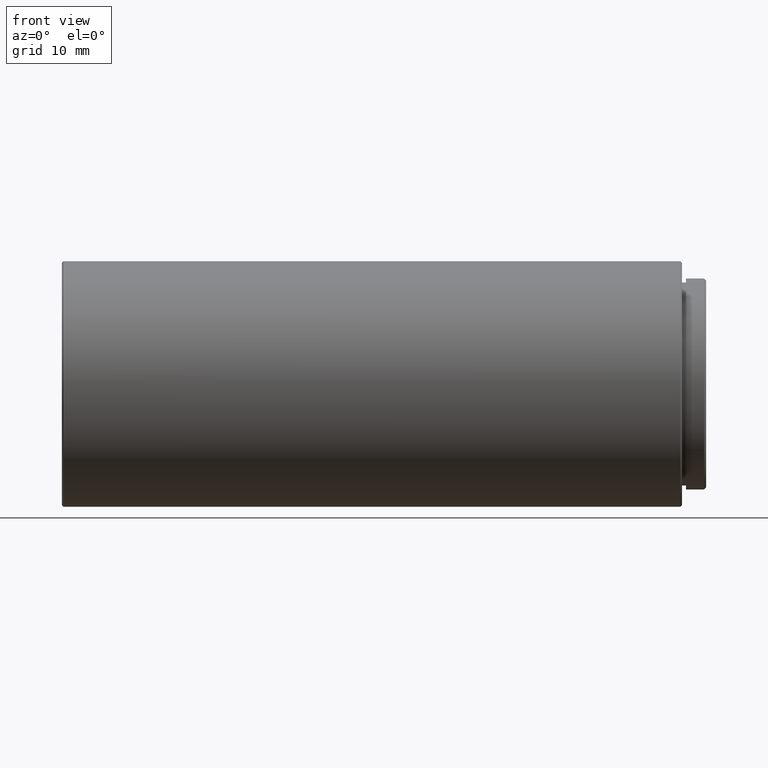
[diagram: clean part render]
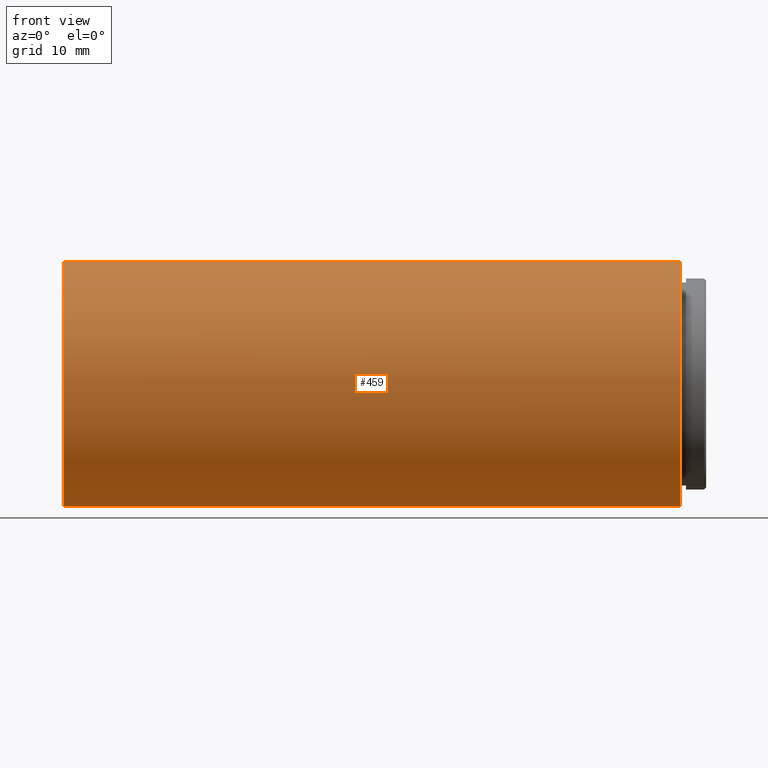
[diagram: same view with one face highlighted and labeled with its STEP entity id]
A machine part, front view. The second image highlights one B-rep face of the part: STEP entity #459.
In plain terms, the highlighted cylindrical surface (partial cylindrical patch) has radius 15.25 mm, axis along (-1, -0, -0).
Its self-contained STEP definition (entity closure, byte-faithful):
#67 = EDGE_CURVE ( 'NONE', #1113, #1412, #396, .T. ) ;
#142 = DIRECTION ( 'NONE',  ( -1.000000000000000000, 0.000000000000000000, 0.000000000000000000 ) ) ;
#186 = LINE ( 'NONE', #1103, #1146 ) ;
#357 = ORIENTED_EDGE ( 'NONE', *, *, #67, .T. ) ;
#371 = CARTESIAN_POINT ( 'NONE',  ( 3.325999999999999623, -20.10857142857141611, -15.25000000000000000 ) ) ;
#372 = CIRCLE ( 'NONE', #1215, 15.25000000000000000 ) ;
#396 = LINE ( 'NONE', #473, #1218 ) ;
#417 = FACE_OUTER_BOUND ( 'NONE', #1411, .T. ) ;
#429 = DIRECTION ( 'NONE',  ( 1.000000000000000000, 0.000000000000000000, 0.000000000000000000 ) ) ;
#459 = ADVANCED_FACE ( 'NONE', ( #417 ), #709, .T. ) ;
#473 = CARTESIAN_POINT ( 'NONE',  ( 3.525999999999982926, -20.10857142857141966, 15.25000000000000000 ) ) ;
#492 = DIRECTION ( 'NONE',  ( -1.000000000000000000, -0.000000000000000000, -0.000000000000000000 ) ) ;
#548 = EDGE_CURVE ( 'NONE', #673, #883, #186, .T. ) ;
#570 = EDGE_CURVE ( 'NONE', #673, #1113, #1503, .T. ) ;
#613 = DIRECTION ( 'NONE',  ( 0.000000000000000000, 0.000000000000000000, 1.000000000000000000 ) ) ;
#673 = VERTEX_POINT ( 'NONE', #371 ) ;
#685 = CARTESIAN_POINT ( 'NONE',  ( -73.27400000000002933, -20.10857142857141966, 0.000000000000000000 ) ) ;
#709 = CYLINDRICAL_SURFACE ( 'NONE', #1270, 15.25000000000000000 ) ;
#719 = ORIENTED_EDGE ( 'NONE', *, *, #570, .T. ) ;
#775 = CARTESIAN_POINT ( 'NONE',  ( 3.325999999999999623, -20.10857142857141966, 0.000000000000000000 ) ) ;
#813 = ORIENTED_EDGE ( 'NONE', *, *, #548, .F. ) ;
#833 = CARTESIAN_POINT ( 'NONE',  ( -73.27400000000002933, -20.10857142857141966, 15.25000000000000000 ) ) ;
#844 = EDGE_CURVE ( 'NONE', #1412, #883, #372, .T. ) ;
#883 = VERTEX_POINT ( 'NONE', #1420 ) ;
#960 = ORIENTED_EDGE ( 'NONE', *, *, #844, .T. ) ;
#1021 = DIRECTION ( 'NONE',  ( 0.000000000000000000, 0.000000000000000000, -1.000000000000000000 ) ) ;
#1103 = CARTESIAN_POINT ( 'NONE',  ( 3.525999999999982926, -20.10857142857141611, -15.25000000000000000 ) ) ;
#1107 = CARTESIAN_POINT ( 'NONE',  ( 3.525999999999982926, -20.10857142857141966, 0.000000000000000000 ) ) ;
#1113 = VERTEX_POINT ( 'NONE', #1144 ) ;
#1144 = CARTESIAN_POINT ( 'NONE',  ( 3.325999999999999623, -20.10857142857141966, 15.25000000000000000 ) ) ;
#1146 = VECTOR ( 'NONE', #1326, 1000.000000000000000 ) ;
#1149 = AXIS2_PLACEMENT_3D ( 'NONE', #775, #142, #1021 ) ;
#1215 = AXIS2_PLACEMENT_3D ( 'NONE', #685, #429, #1537 ) ;
#1218 = VECTOR ( 'NONE', #1569, 1000.000000000000000 ) ;
#1270 = AXIS2_PLACEMENT_3D ( 'NONE', #1107, #492, #613 ) ;
#1326 = DIRECTION ( 'NONE',  ( -1.000000000000000000, -0.000000000000000000, -0.000000000000000000 ) ) ;
#1411 = EDGE_LOOP ( 'NONE', ( #813, #719, #357, #960 ) ) ;
#1412 = VERTEX_POINT ( 'NONE', #833 ) ;
#1420 = CARTESIAN_POINT ( 'NONE',  ( -73.27400000000002933, -20.10857142857141611, -15.25000000000000000 ) ) ;
#1503 = CIRCLE ( 'NONE', #1149, 15.25000000000000000 ) ;
#1537 = DIRECTION ( 'NONE',  ( 0.000000000000000000, 0.000000000000000000, 1.000000000000000000 ) ) ;
#1569 = DIRECTION ( 'NONE',  ( -1.000000000000000000, -0.000000000000000000, -0.000000000000000000 ) ) ;